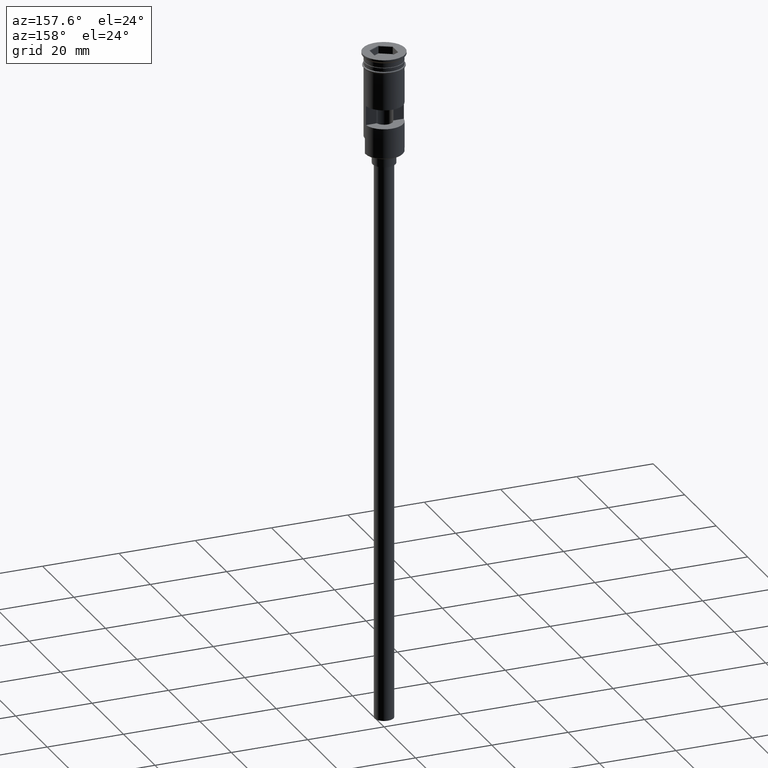
[diagram: clean part render]
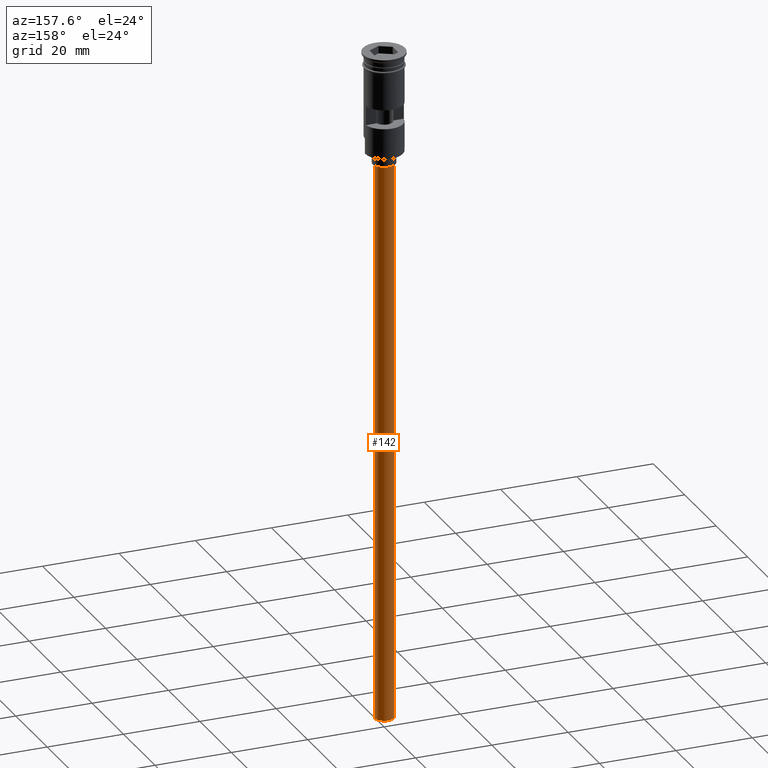
[diagram: same view with one face highlighted and labeled with its STEP entity id]
A machine part, auxiliary view. The second image highlights one B-rep face of the part: STEP entity #142.
In plain terms, the highlighted cylindrical surface (edge-blend (fillet) strip) has radius 2.5 mm, axis along (-0, -0, 1).
Its self-contained STEP definition (entity closure, byte-faithful):
#8 = AXIS2_PLACEMENT_3D ( 'NONE', #456, #945, #1429 ) ;
#24 = EDGE_CURVE ( 'NONE', #458, #189, #461, .T. ) ;
#54 = EDGE_LOOP ( 'NONE', ( #270, #1521, #794, #654 ) ) ;
#103 = DIRECTION ( 'NONE',  ( -1.000000000000000000, 0.000000000000000000, 0.000000000000000000 ) ) ;
#142 = ADVANCED_FACE ( 'NONE', ( #1318 ), #1550, .T. ) ;
#175 = DIRECTION ( 'NONE',  ( -1.000000000000000000, 0.000000000000000000, 0.000000000000000000 ) ) ;
#189 = VERTEX_POINT ( 'NONE', #1454 ) ;
#221 = VERTEX_POINT ( 'NONE', #1345 ) ;
#270 = ORIENTED_EDGE ( 'NONE', *, *, #939, .F. ) ;
#355 = DIRECTION ( 'NONE',  ( -0.000000000000000000, -0.000000000000000000, 1.000000000000000000 ) ) ;
#370 = CIRCLE ( 'NONE', #718, 2.500000000000000000 ) ;
#445 = CARTESIAN_POINT ( 'NONE',  ( -2.500000000000000000, 3.061616997868383141E-16, -176.5000000000000000 ) ) ;
#456 = CARTESIAN_POINT ( 'NONE',  ( 0.000000000000000000, 0.000000000000000000, -176.5000000000000000 ) ) ;
#458 = VERTEX_POINT ( 'NONE', #910 ) ;
#461 = CIRCLE ( 'NONE', #1305, 2.500000000000000000 ) ;
#496 = VERTEX_POINT ( 'NONE', #1166 ) ;
#608 = EDGE_CURVE ( 'NONE', #221, #189, #877, .T. ) ;
#654 = ORIENTED_EDGE ( 'NONE', *, *, #608, .F. ) ;
#702 = LINE ( 'NONE', #445, #1335 ) ;
#718 = AXIS2_PLACEMENT_3D ( 'NONE', #1598, #1211, #103 ) ;
#794 = ORIENTED_EDGE ( 'NONE', *, *, #24, .T. ) ;
#877 = LINE ( 'NONE', #1372, #1331 ) ;
#910 = CARTESIAN_POINT ( 'NONE',  ( -2.500000000000000000, 3.061616997868383141E-16, -29.50000000000000000 ) ) ;
#939 = EDGE_CURVE ( 'NONE', #496, #221, #370, .T. ) ;
#945 = DIRECTION ( 'NONE',  ( -0.000000000000000000, -0.000000000000000000, 1.000000000000000000 ) ) ;
#1166 = CARTESIAN_POINT ( 'NONE',  ( -2.500000000000000000, 3.061616997868383141E-16, -176.5000000000000000 ) ) ;
#1211 = DIRECTION ( 'NONE',  ( 0.000000000000000000, 0.000000000000000000, -1.000000000000000000 ) ) ;
#1261 = CARTESIAN_POINT ( 'NONE',  ( 0.000000000000000000, 0.000000000000000000, -29.50000000000000000 ) ) ;
#1305 = AXIS2_PLACEMENT_3D ( 'NONE', #1261, #1394, #175 ) ;
#1318 = FACE_OUTER_BOUND ( 'NONE', #54, .T. ) ;
#1331 = VECTOR ( 'NONE', #1497, 1000.000000000000000 ) ;
#1335 = VECTOR ( 'NONE', #355, 1000.000000000000000 ) ;
#1340 = EDGE_CURVE ( 'NONE', #496, #458, #702, .T. ) ;
#1345 = CARTESIAN_POINT ( 'NONE',  ( 2.500000000000000000, 0.000000000000000000, -176.5000000000000000 ) ) ;
#1372 = CARTESIAN_POINT ( 'NONE',  ( 2.500000000000000000, 0.000000000000000000, -176.5000000000000000 ) ) ;
#1394 = DIRECTION ( 'NONE',  ( 0.000000000000000000, 0.000000000000000000, -1.000000000000000000 ) ) ;
#1429 = DIRECTION ( 'NONE',  ( 1.000000000000000000, 0.000000000000000000, 0.000000000000000000 ) ) ;
#1454 = CARTESIAN_POINT ( 'NONE',  ( 2.500000000000000000, 0.000000000000000000, -29.50000000000000000 ) ) ;
#1497 = DIRECTION ( 'NONE',  ( -0.000000000000000000, -0.000000000000000000, 1.000000000000000000 ) ) ;
#1521 = ORIENTED_EDGE ( 'NONE', *, *, #1340, .T. ) ;
#1550 = CYLINDRICAL_SURFACE ( 'NONE', #8, 2.500000000000000000 ) ;
#1598 = CARTESIAN_POINT ( 'NONE',  ( 0.000000000000000000, 0.000000000000000000, -176.5000000000000000 ) ) ;